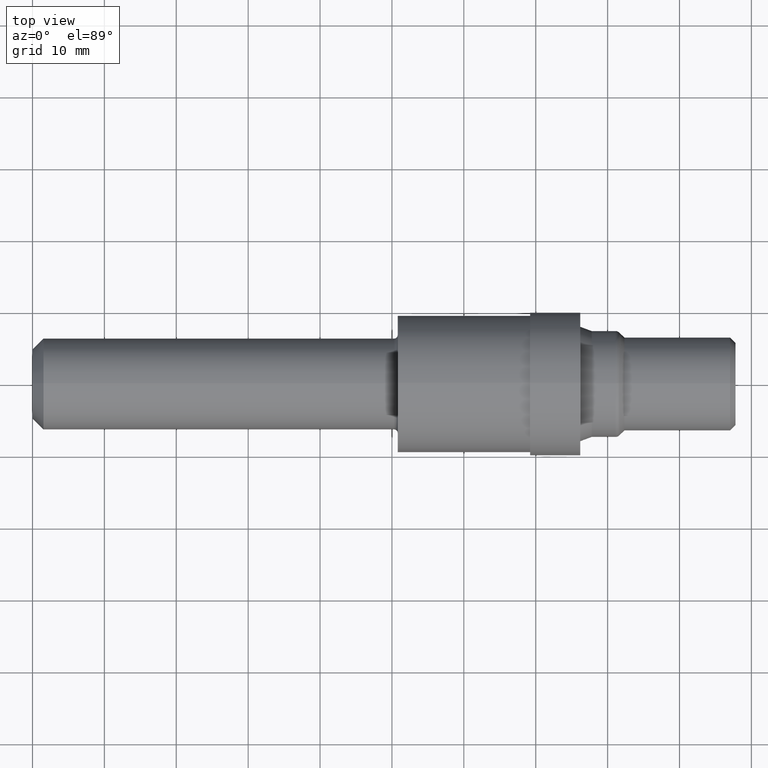
[diagram: clean part render]
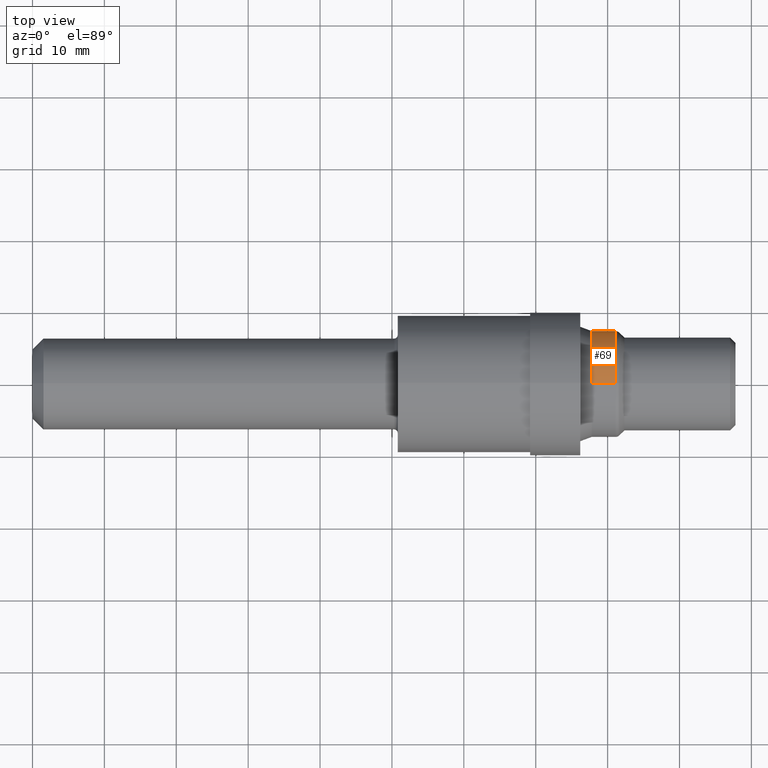
[diagram: same view with one face highlighted and labeled with its STEP entity id]
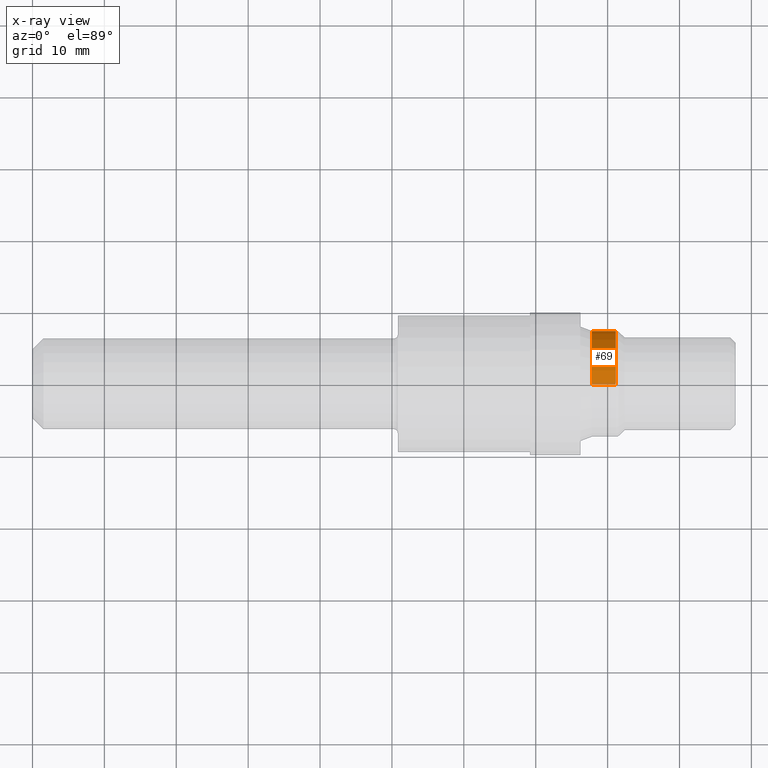
[diagram: x-ray of the same camera — body ghosted, the highlighted face saturated]
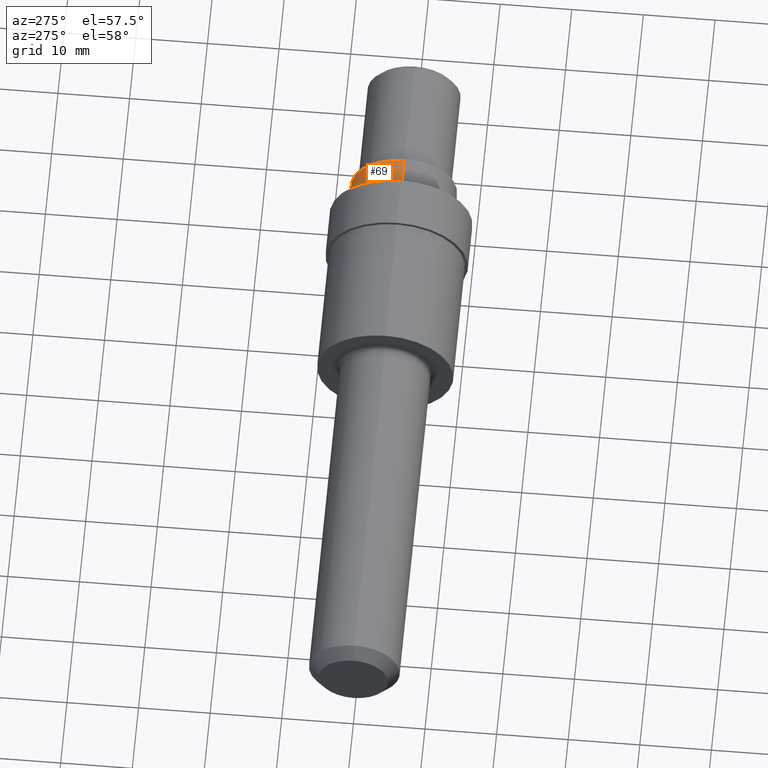
[diagram: same view with one face highlighted and labeled with its STEP entity id]
A machine part, top view. The second image highlights one B-rep face of the part: STEP entity #69.
The next image is the same camera in x-ray: the body ghosted, the highlighted face saturated — about 3% of this face is hidden behind the body in this view.
A second angle (auxiliary view) of the same face is appended — the face is thin or edge-on in the first view.
In plain terms, the highlighted cylindrical surface (partial cylindrical patch) has radius 7.4016 mm, axis along (-1, -0, -0).
Its self-contained STEP definition (entity closure, byte-faithful):
#27 = DIRECTION ( 'NONE',  ( 0.0000000000000000000, 0.0000000000000000000, 1.000000000000000000 ) ) ;
#54 = LINE ( 'NONE', #354, #334 ) ;
#59 = DIRECTION ( 'NONE',  ( 0.0000000000000000000, 0.0000000000000000000, 1.000000000000000000 ) ) ;
#69 = ADVANCED_FACE ( 'NONE', ( #174 ), #163, .T. ) ;
#77 = CARTESIAN_POINT ( 'NONE',  ( 3.193073593128807008, 3.568620772715386493E-17, -0.2913999999999999369 ) ) ;
#84 = DIRECTION ( 'NONE',  ( 0.0000000000000000000, 0.0000000000000000000, 1.000000000000000000 ) ) ;
#89 = DIRECTION ( 'NONE',  ( -1.000000000000000000, -0.0000000000000000000, -0.0000000000000000000 ) ) ;
#120 = CIRCLE ( 'NONE', #650, 0.2913999999999999924 ) ;
#146 = EDGE_CURVE ( 'NONE', #433, #583, #120, .T. ) ;
#158 = DIRECTION ( 'NONE',  ( -1.000000000000000000, -0.0000000000000000000, -0.0000000000000000000 ) ) ;
#163 = CYLINDRICAL_SURFACE ( 'NONE', #670, 0.2913999999999999924 ) ;
#167 = CARTESIAN_POINT ( 'NONE',  ( 3.193073593128807008, 0.0000000000000000000, 0.0000000000000000000 ) ) ;
#174 = FACE_OUTER_BOUND ( 'NONE', #562, .T. ) ;
#213 = AXIS2_PLACEMENT_3D ( 'NONE', #428, #641, #59 ) ;
#242 = VERTEX_POINT ( 'NONE', #742 ) ;
#254 = VERTEX_POINT ( 'NONE', #353 ) ;
#323 = CARTESIAN_POINT ( 'NONE',  ( 0.0000000000000000000, 0.0000000000000000000, 0.0000000000000000000 ) ) ;
#334 = VECTOR ( 'NONE', #727, 39.37007874015748143 ) ;
#338 = ORIENTED_EDGE ( 'NONE', *, *, #694, .F. ) ;
#353 = CARTESIAN_POINT ( 'NONE',  ( 3.062500000000000444, 0.0000000000000000000, 0.2913999999999999924 ) ) ;
#354 = CARTESIAN_POINT ( 'NONE',  ( 0.0000000000000000000, 0.0000000000000000000, 0.2913999999999999924 ) ) ;
#428 = CARTESIAN_POINT ( 'NONE',  ( 3.062500000000000444, 0.0000000000000000000, 0.0000000000000000000 ) ) ;
#433 = VERTEX_POINT ( 'NONE', #695 ) ;
#470 = DIRECTION ( 'NONE',  ( -1.000000000000000000, -0.0000000000000000000, -0.0000000000000000000 ) ) ;
#496 = ORIENTED_EDGE ( 'NONE', *, *, #146, .T. ) ;
#503 = EDGE_CURVE ( 'NONE', #583, #242, #667, .T. ) ;
#514 = VECTOR ( 'NONE', #158, 39.37007874015748143 ) ;
#530 = EDGE_CURVE ( 'NONE', #433, #254, #54, .T. ) ;
#562 = EDGE_LOOP ( 'NONE', ( #496, #595, #338, #684 ) ) ;
#583 = VERTEX_POINT ( 'NONE', #77 ) ;
#595 = ORIENTED_EDGE ( 'NONE', *, *, #503, .T. ) ;
#608 = CIRCLE ( 'NONE', #213, 0.2913999999999999924 ) ;
#641 = DIRECTION ( 'NONE',  ( -1.000000000000000000, -0.0000000000000000000, -0.0000000000000000000 ) ) ;
#650 = AXIS2_PLACEMENT_3D ( 'NONE', #167, #89, #84 ) ;
#667 = LINE ( 'NONE', #734, #514 ) ;
#670 = AXIS2_PLACEMENT_3D ( 'NONE', #323, #470, #27 ) ;
#684 = ORIENTED_EDGE ( 'NONE', *, *, #530, .F. ) ;
#694 = EDGE_CURVE ( 'NONE', #254, #242, #608, .T. ) ;
#695 = CARTESIAN_POINT ( 'NONE',  ( 3.193073593128807008, 0.0000000000000000000, 0.2913999999999999369 ) ) ;
#727 = DIRECTION ( 'NONE',  ( -1.000000000000000000, -0.0000000000000000000, -0.0000000000000000000 ) ) ;
#734 = CARTESIAN_POINT ( 'NONE',  ( 0.0000000000000000000, 3.568620772715387109E-17, -0.2913999999999999924 ) ) ;
#742 = CARTESIAN_POINT ( 'NONE',  ( 3.062500000000000444, 3.568620772715387109E-17, -0.2913999999999999924 ) ) ;